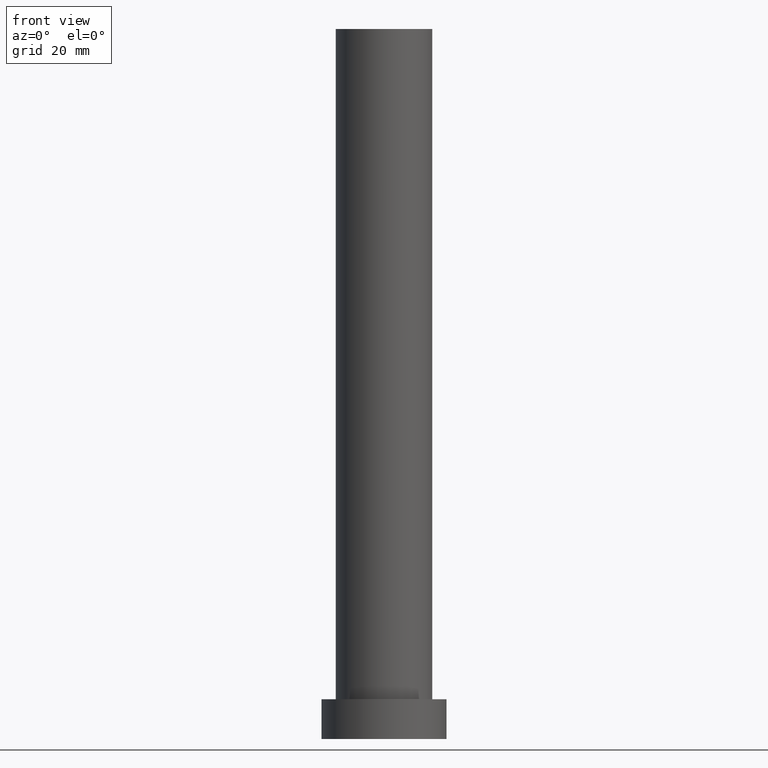
[diagram: clean part render]
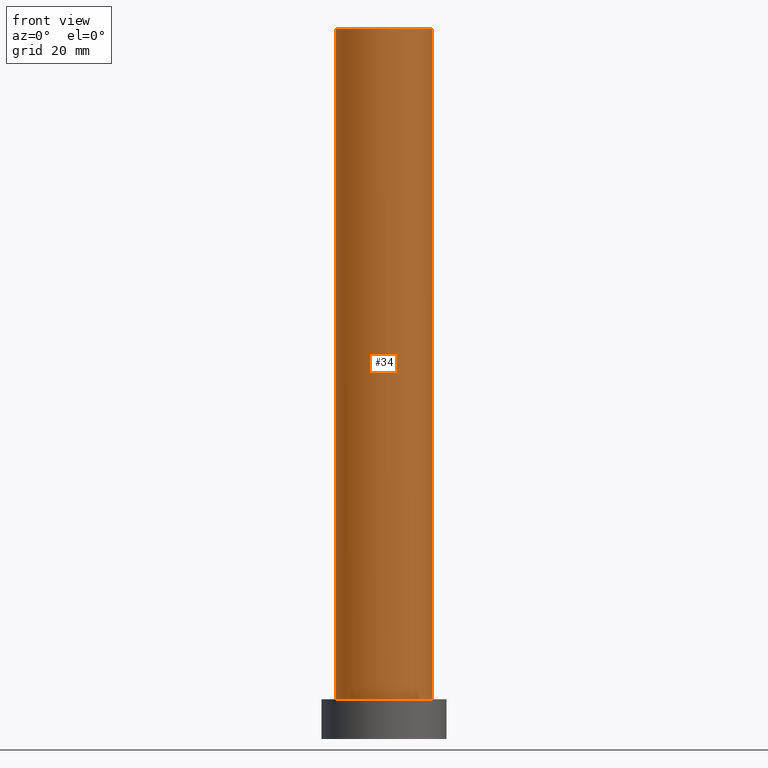
[diagram: same view with one face highlighted and labeled with its STEP entity id]
A machine part, front view. The second image highlights one B-rep face of the part: STEP entity #34.
In plain terms, the highlighted cylindrical surface (partial cylindrical patch) has radius 8.5 mm, axis along (-0, -0, -1).
Its self-contained STEP definition (entity closure, byte-faithful):
#1 = CARTESIAN_POINT ( 'NONE',  ( 8.500000000000000000, 1.040949779275250140E-15, 7.000000000000000000 ) ) ;
#3 = CIRCLE ( 'NONE', #32, 8.500000000000000000 ) ;
#14 = EDGE_CURVE ( 'NONE', #73, #159, #57, .T. ) ;
#17 = DIRECTION ( 'NONE',  ( -1.000000000000000000, 0.000000000000000000, 0.000000000000000000 ) ) ;
#23 = VERTEX_POINT ( 'NONE', #1 ) ;
#25 = EDGE_CURVE ( 'NONE', #42, #23, #234, .T. ) ;
#32 = AXIS2_PLACEMENT_3D ( 'NONE', #102, #62, #125 ) ;
#34 = ADVANCED_FACE ( 'NONE', ( #174 ), #188, .T. ) ;
#35 = DIRECTION ( 'NONE',  ( -0.000000000000000000, -0.000000000000000000, -1.000000000000000000 ) ) ;
#42 = VERTEX_POINT ( 'NONE', #120 ) ;
#54 = CIRCLE ( 'NONE', #220, 8.500000000000000000 ) ;
#57 = LINE ( 'NONE', #156, #91 ) ;
#62 = DIRECTION ( 'NONE',  ( 0.000000000000000000, 0.000000000000000000, 1.000000000000000000 ) ) ;
#73 = VERTEX_POINT ( 'NONE', #210 ) ;
#78 = DIRECTION ( 'NONE',  ( -0.000000000000000000, -0.000000000000000000, -1.000000000000000000 ) ) ;
#86 = AXIS2_PLACEMENT_3D ( 'NONE', #94, #35, #17 ) ;
#91 = VECTOR ( 'NONE', #78, 1000.000000000000000 ) ;
#94 = CARTESIAN_POINT ( 'NONE',  ( 0.000000000000000000, 0.000000000000000000, 125.0000000000000000 ) ) ;
#97 = EDGE_LOOP ( 'NONE', ( #244, #162, #218, #142 ) ) ;
#102 = CARTESIAN_POINT ( 'NONE',  ( 0.000000000000000000, 0.000000000000000000, 125.0000000000000000 ) ) ;
#120 = CARTESIAN_POINT ( 'NONE',  ( 8.500000000000000000, 1.040949779275250140E-15, 125.0000000000000000 ) ) ;
#125 = DIRECTION ( 'NONE',  ( 1.000000000000000000, 0.000000000000000000, 0.000000000000000000 ) ) ;
#127 = CARTESIAN_POINT ( 'NONE',  ( 0.000000000000000000, 0.000000000000000000, 7.000000000000000000 ) ) ;
#139 = CARTESIAN_POINT ( 'NONE',  ( 8.500000000000000000, 1.040949779275250140E-15, 125.0000000000000000 ) ) ;
#142 = ORIENTED_EDGE ( 'NONE', *, *, #201, .T. ) ;
#148 = DIRECTION ( 'NONE',  ( 0.000000000000000000, 0.000000000000000000, 1.000000000000000000 ) ) ;
#156 = CARTESIAN_POINT ( 'NONE',  ( -8.500000000000000000, 0.000000000000000000, 125.0000000000000000 ) ) ;
#158 = EDGE_CURVE ( 'NONE', #73, #42, #3, .T. ) ;
#159 = VERTEX_POINT ( 'NONE', #167 ) ;
#162 = ORIENTED_EDGE ( 'NONE', *, *, #158, .F. ) ;
#167 = CARTESIAN_POINT ( 'NONE',  ( -8.500000000000000000, 0.000000000000000000, 7.000000000000000000 ) ) ;
#168 = VECTOR ( 'NONE', #172, 1000.000000000000000 ) ;
#172 = DIRECTION ( 'NONE',  ( -0.000000000000000000, -0.000000000000000000, -1.000000000000000000 ) ) ;
#174 = FACE_OUTER_BOUND ( 'NONE', #97, .T. ) ;
#188 = CYLINDRICAL_SURFACE ( 'NONE', #86, 8.500000000000000000 ) ;
#201 = EDGE_CURVE ( 'NONE', #159, #23, #54, .T. ) ;
#210 = CARTESIAN_POINT ( 'NONE',  ( -8.500000000000000000, 0.000000000000000000, 125.0000000000000000 ) ) ;
#218 = ORIENTED_EDGE ( 'NONE', *, *, #14, .T. ) ;
#220 = AXIS2_PLACEMENT_3D ( 'NONE', #127, #148, #225 ) ;
#225 = DIRECTION ( 'NONE',  ( 1.000000000000000000, 0.000000000000000000, 0.000000000000000000 ) ) ;
#234 = LINE ( 'NONE', #139, #168 ) ;
#244 = ORIENTED_EDGE ( 'NONE', *, *, #25, .F. ) ;